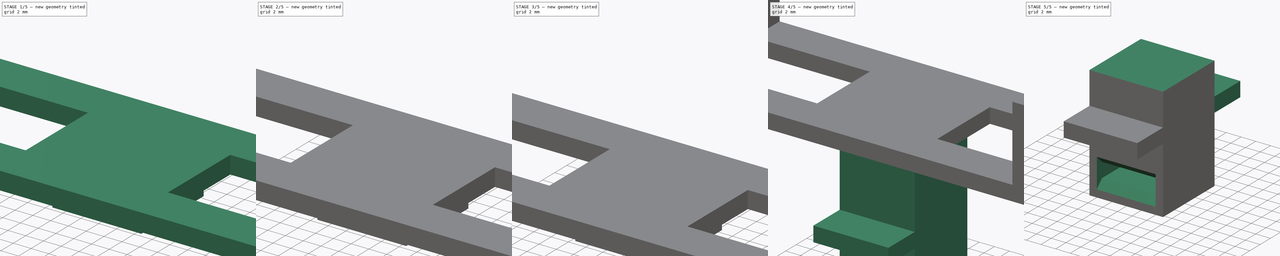
[diagram: build sequence overview — one tinted view per stage of 5, left to right]
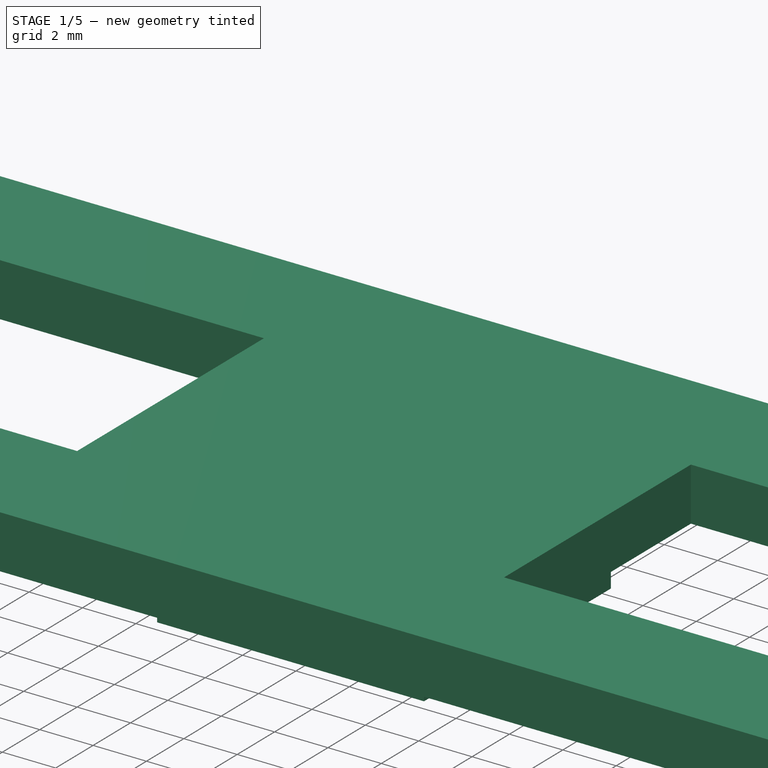
[diagram: stage 1 of 5 — iso view after this stage's code; geometry added in this stage tinted green]
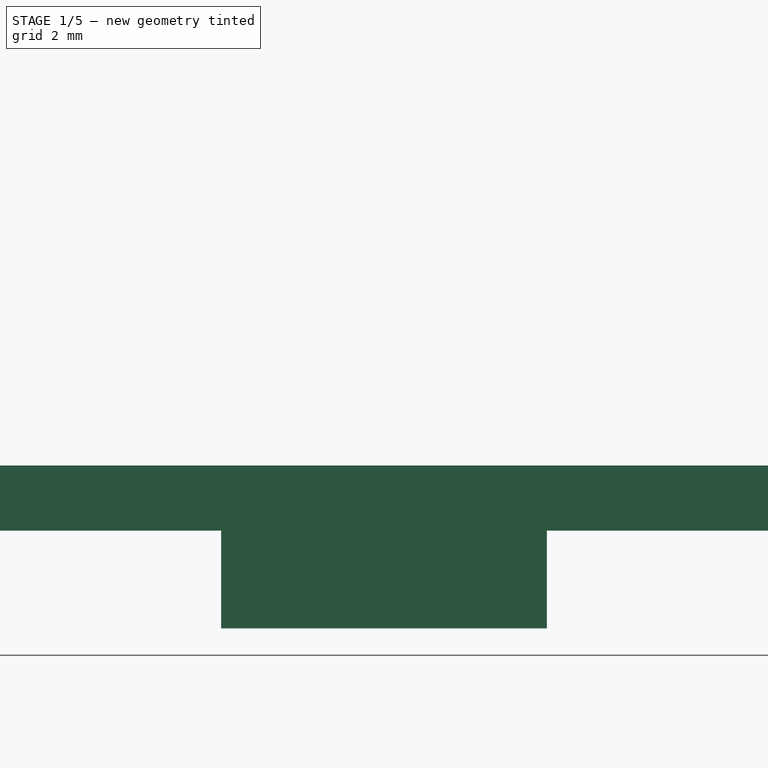
[diagram: stage 1 of 5 — front view after this stage's code; geometry added in this stage tinted green]
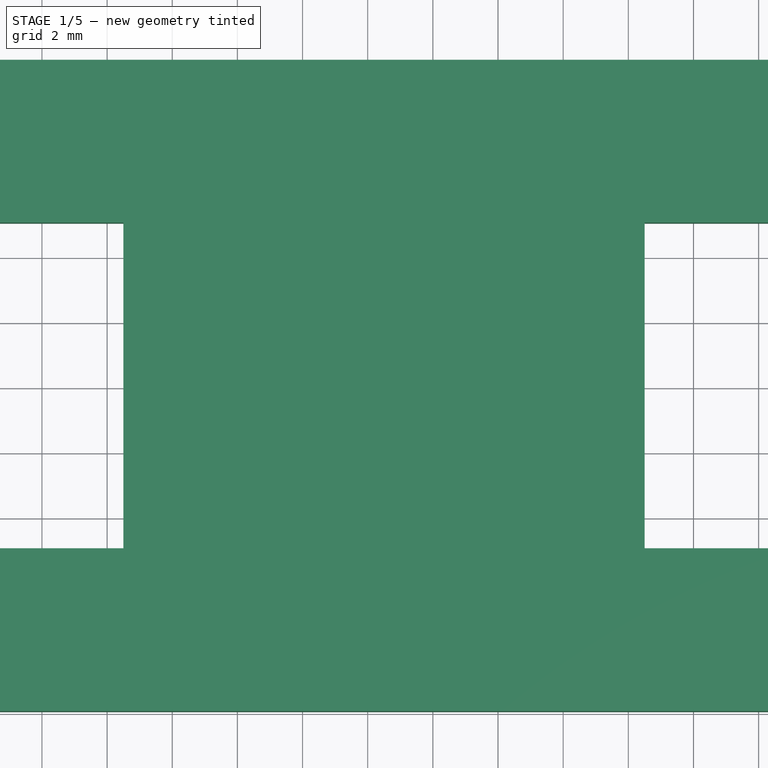
[diagram: stage 1 of 5 — top view after this stage's code; geometry added in this stage tinted green]
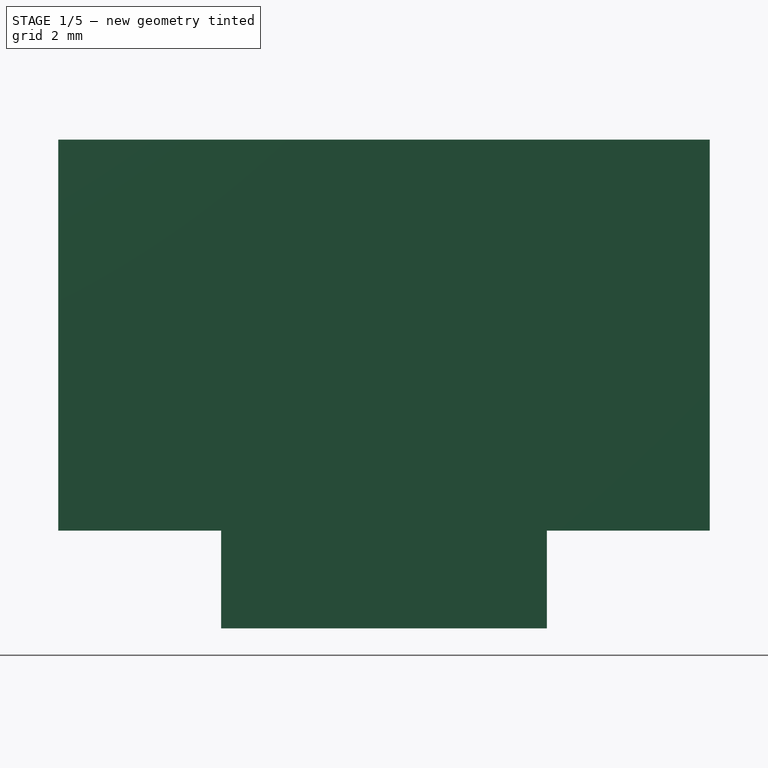
[diagram: stage 1 of 5 — right view after this stage's code; geometry added in this stage tinted green]
FCSTD DOCUMENT  (FreeCAD 1.0R39319 (Git))
Label: block
License: All rights reserved
LicenseURL: https://en.wikipedia.org/wiki/All_rights_reserved
objects: PartDesign::Pad×14, Sketcher::SketchObject×12, PartDesign::Pocket×5, PartDesign::Chamfer×1, PartDesign::Body×1
note: 85 computed .brp shape members not serialized (recipe doc carries the construction recipe); baked Part::Feature solids carry a one-line shape summary decoded from their .brp

FEATURE [Sketcher::SketchObject] Sketch
  ArcFitTolerance = 1e-06
  AttachmentSupport = -> [XY_Plane]
  FullyConstrained = true
  MakeInternals = false
  MapMode = 5
  sketch-geometry (4):
    g0: LineSegment StartX=0 StartY=0 StartZ=0 EndX=49 EndY=0 EndZ=0
    g1: LineSegment StartX=49 StartY=0 StartZ=0 EndX=49 EndY=20 EndZ=0
    g2: LineSegment StartX=49 StartY=20 StartZ=0 EndX=0 EndY=20 EndZ=0
    g3: LineSegment StartX=0 StartY=20 StartZ=0 EndX=0 EndY=0 EndZ=0
  constraints (11):
    c: Coincident(g0,g1)
    c: Coincident(g1,g2)
    c: Coincident(g2,g3)
    c: Coincident(g3,g0)
    c: Horizontal(g0)
    c: Horizontal(g2)
    c: Vertical(g1)
    c: Vertical(g3)
    c: Distance(g1,g3) = 49
    c: Distance(g0,g2) = 20
    c: Coincident(g0,g-1)
FEATURE [PartDesign::Pad] Pad
  Direction = (0,0,1)
  Length = 2
  Length2 = 10
  Profile = -> Sketch
  ReferenceAxis = -> Sketch [N_Axis]
  Refine = true
  Suppressed = false
  Type = 0
FEATURE [Sketcher::SketchObject] Sketch001
  ArcFitTolerance = 1e-06
  AttachmentSupport = -> [Pad]
  ExternalGeometry = -> [Pad]
  FullyConstrained = true
  MakeInternals = false
  MapMode = 5
  Placement = pos=(0,0,2) rot=(0,0,1;0rad)
  sketch-geometry (10):
    g0: LineSegment StartX=19.5 StartY=15 StartZ=0 EndX=19.5 EndY=5 EndZ=0
    g1: LineSegment StartX=19.5 StartY=5 StartZ=0 EndX=29.5 EndY=5 EndZ=0
    g2: LineSegment StartX=29.5 StartY=5 StartZ=0 EndX=29.5 EndY=15 EndZ=0
    g3: LineSegment StartX=29.5 StartY=15 StartZ=0 EndX=19.5 EndY=15 EndZ=0
    g4: GeomPoint X=49 Y=10 Z=0
    g5: GeomPoint X=29.5 Y=10 Z=0
    g6: LineSegment [constr] StartX=49 StartY=10 StartZ=0 EndX=0 EndY=10 EndZ=0
    g7: GeomPoint [constr] X=24.5 Y=20 Z=0
    g8: LineSegment [constr] StartX=24.5 StartY=20 StartZ=0 EndX=24.5 EndY=0 EndZ=0
    g9: GeomPoint [constr] X=24.5 Y=15 Z=0
  constraints (22):
    c: Coincident(g0,g1)
    c: Coincident(g1,g2)
    c: Coincident(g2,g3)
    c: Coincident(g3,g0)
    c: Vertical(g0)
    c: Vertical(g2)
    c: Horizontal(g1)
    c: Horizontal(g3)
    c: Distance(g0,g2) = 10
    c: Distance(g1,g3) = 10
    c: Symmetric(g-4,g-4,g4)
    c: Symmetric(g2,g2,g5)
    c: Coincident(g6,g4)
    c: PointOnObject(g6,g-2)
    c: Horizontal(g6)
    c: PointOnObject(g5,g6)
    c: Symmetric(g-3,g-3,g7)
    c: Coincident(g8,g7)
    c: PointOnObject(g8,g-1)
    c: Vertical(g8)
    c: Symmetric(g3,g3,g9)
    c: PointOnObject(g9,g8)
FEATURE [PartDesign::Pad] Pad001
  BaseFeature = -> Pad
  Direction = (0,0,1)
  Length = 5
  Length2 = 10
  Profile = -> Sketch001
  ReferenceAxis = -> Sketch001 [N_Axis]
  Refine = true
  Reversed = true
  Suppressed = false
  Type = 0
FEATURE [Sketcher::SketchObject] Sketch002
  ArcFitTolerance = 1e-06
  AttachmentSupport = -> [Pad001]
  ExternalGeometry = -> [Pad001]
  FullyConstrained = true
  MakeInternals = false
  MapMode = 5
  Placement = pos=(0,0,0) rot=(1,0,0;3.14159rad)
  sketch-geometry (8):
    g0: LineSegment StartX=32.5 StartY=-5 StartZ=0 EndX=32.5 EndY=-15 EndZ=0
    g1: LineSegment StartX=32.5 StartY=-15 StartZ=0 EndX=46 EndY=-15 EndZ=0
    g2: LineSegment StartX=46 StartY=-15 StartZ=0 EndX=46 EndY=-5 EndZ=0
    g3: LineSegment StartX=46 StartY=-5 StartZ=0 EndX=32.5 EndY=-5 EndZ=0
    g4: LineSegment StartX=16.5 StartY=-5 StartZ=0 EndX=3 EndY=-5 EndZ=0
    g5: LineSegment StartX=3 StartY=-5 StartZ=0 EndX=3 EndY=-15 EndZ=0
    g6: LineSegment StartX=3 StartY=-15 StartZ=0 EndX=16.5 EndY=-15 EndZ=0
    g7: LineSegment StartX=16.5 StartY=-15 StartZ=0 EndX=16.5 EndY=-5 EndZ=0
  constraints (24):
    c: Coincident(g0,g1)
    c: Coincident(g1,g2)
    c: Coincident(g2,g3)
    c: Coincident(g3,g0)
    c: Vertical(g0)
    c: Vertical(g2)
    c: Horizontal(g1)
    c: Horizontal(g3)
    c: Coincident(g4,g5)
    c: Coincident(g5,g6)
    c: Coincident(g6,g7)
    c: Coincident(g7,g4)
    c: Horizontal(g4)
    c: Horizontal(g6)
    c: Vertical(g5)
    c: Vertical(g7)
    c: Distance(g4,g-1) = 5
    c: Distance(g0,g-1) = 5
    c: Distance(g6,g-4) = 5
    c: Distance(g0,g-4) = 5
    c: Distance(g5,g-2) = 3
    c: Distance(g1,g-3) = 3
    c: Distance(g6,g-6) = 3
    c: Distance(g0,g-5) = 3
FEATURE [PartDesign::Pocket] Pocket
  BaseFeature = -> Pad001
  Direction = (0,0,1)
  Length = 5
  Length2 = 5
  Profile = -> Sketch002
  ReferenceAxis = -> Sketch002 [N_Axis]
  Refine = true
  Suppressed = false
  Type = 0
FEATURE [Sketcher::SketchObject] Sketch003
  ArcFitTolerance = 1e-06
  AttachmentSupport = -> [Pocket]
  ExternalGeometry = -> [Pocket]
  FullyConstrained = true
  MakeInternals = false
  MapMode = 5
  Placement = pos=(0,0,2) rot=(0,0,1;0rad)
  sketch-geometry (4):
    g0: LineSegment StartX=49 StartY=20 StartZ=0 EndX=46 EndY=20 EndZ=0
    g1: LineSegment StartX=46 StartY=20 StartZ=0 EndX=46 EndY=0 EndZ=0
    g2: LineSegment StartX=46 StartY=0 StartZ=0 EndX=49 EndY=0 EndZ=0
    g3: LineSegment StartX=49 StartY=0 StartZ=0 EndX=49 EndY=20 EndZ=0
  constraints (11):
    c: Coincident(g0,g1)
    c: Coincident(g1,g2)
    c: Coincident(g2,g3)
    c: Coincident(g3,g0)
    c: Horizontal(g0)
    c: Horizontal(g2)
    c: Vertical(g1)
    c: Vertical(g3)
    c: Distance(g1,g3) = 3
    c: Coincident(g0,g-4)
    c: PointOnObject(g1,g-1)
FEATURE [PartDesign::Pad] Pad002
  BaseFeature = -> Pocket
  Direction = (0,0,1)
  Length = 10
  Length2 = 10
  Profile = -> Sketch003
  ReferenceAxis = -> Sketch003 [N_Axis]
  Refine = true
  Suppressed = false
  Type = 0
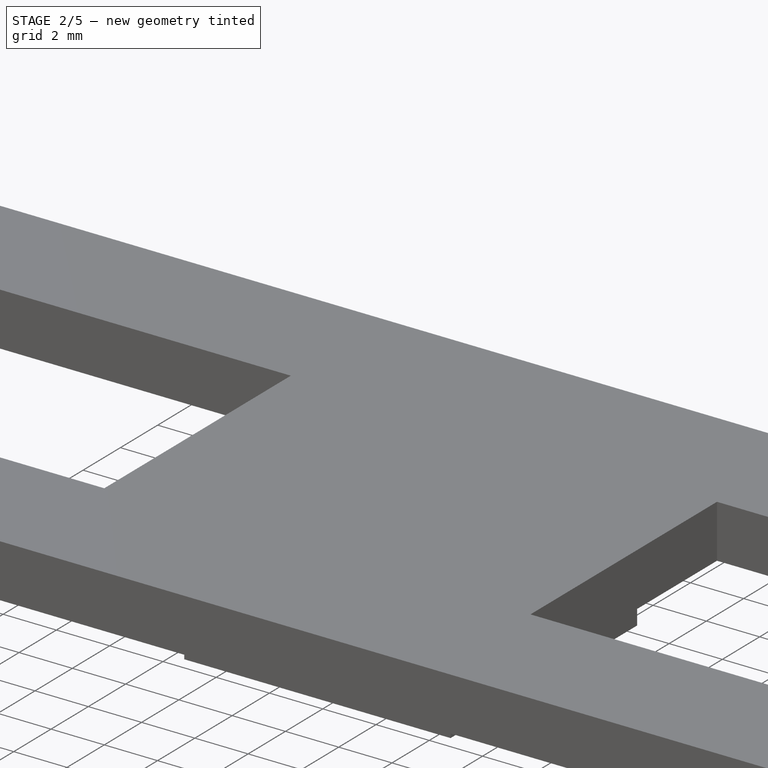
[diagram: stage 2 of 5 — iso view after this stage's code; geometry added in this stage tinted green]
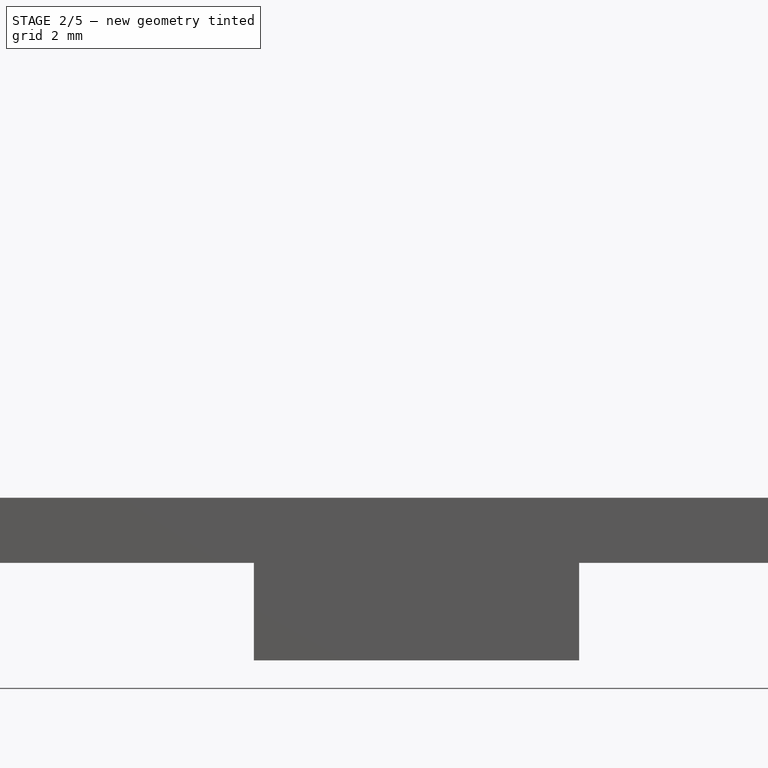
[diagram: stage 2 of 5 — front view after this stage's code; geometry added in this stage tinted green]
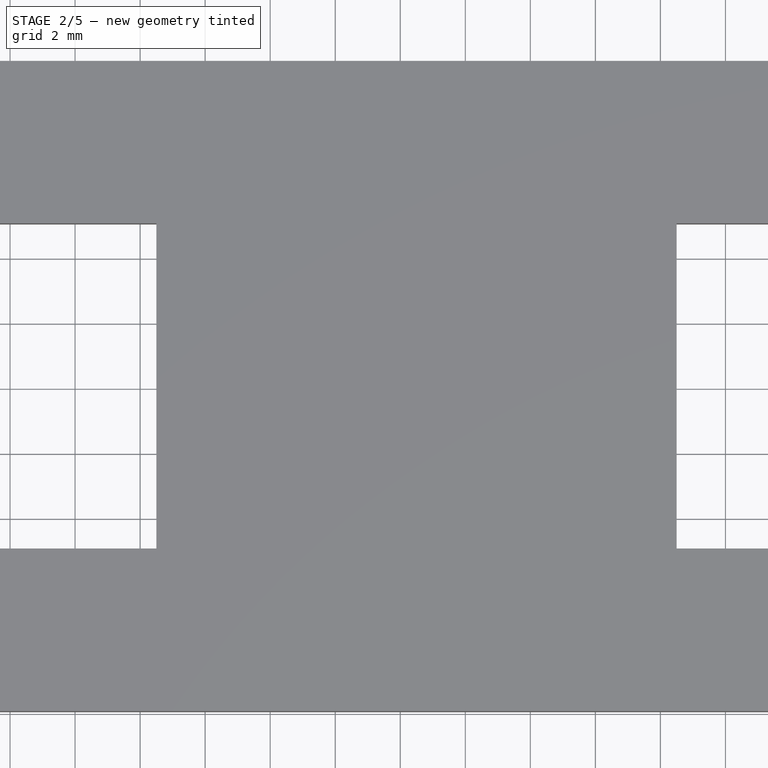
[diagram: stage 2 of 5 — top view after this stage's code; geometry added in this stage tinted green]
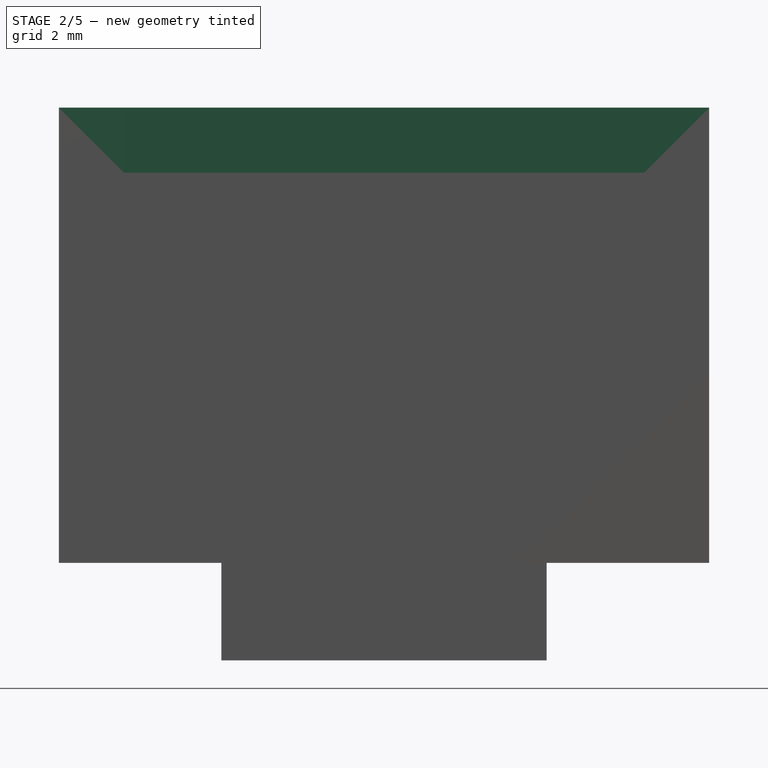
[diagram: stage 2 of 5 — right view after this stage's code; geometry added in this stage tinted green]
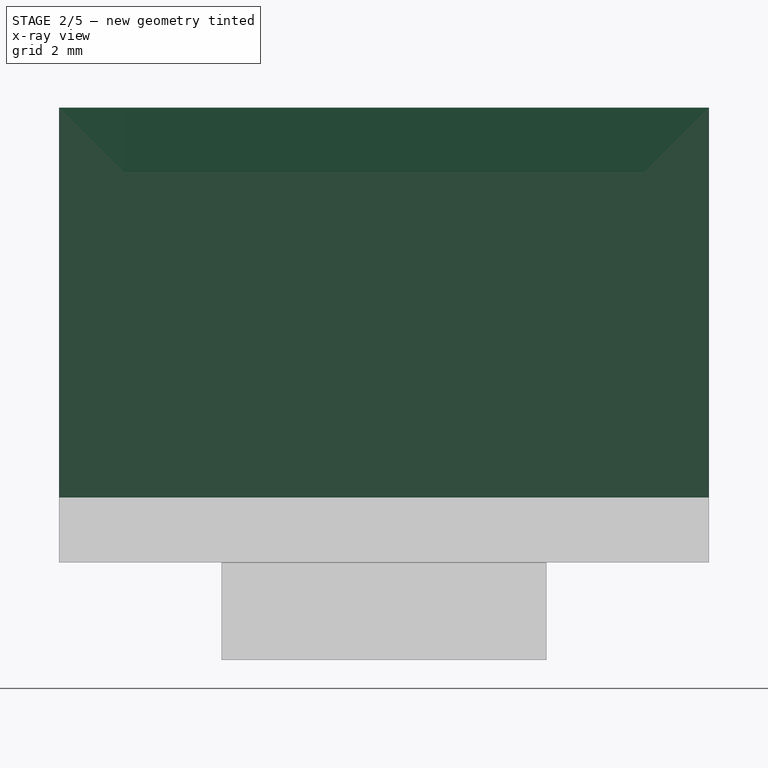
[diagram: stage 2 of 5 — x-ray composite at the right view; earlier geometry ghosted, this stage's added geometry solid]
FEATURE [Sketcher::SketchObject] Sketch004
  ArcFitTolerance = 1e-06
  AttachmentSupport = -> [Pad002]
  ExternalGeometry = -> [Pad002]
  FullyConstrained = true
  MakeInternals = false
  MapMode = 5
  Placement = pos=(0,0,12) rot=(0,0,1;0rad)
  sketch-geometry (8):
    g0: LineSegment StartX=49 StartY=20 StartZ=0 EndX=48 EndY=20 EndZ=0
    g1: LineSegment StartX=48 StartY=20 StartZ=0 EndX=48 EndY=18 EndZ=0
    g2: LineSegment StartX=48 StartY=18 StartZ=0 EndX=49 EndY=18 EndZ=0
    g3: LineSegment StartX=49 StartY=18 StartZ=0 EndX=49 EndY=20 EndZ=0
    g4: LineSegment StartX=49 StartY=0 StartZ=0 EndX=49 EndY=2 EndZ=0
    g5: LineSegment StartX=49 StartY=2 StartZ=0 EndX=48 EndY=2 EndZ=0
    g6: LineSegment StartX=48 StartY=2 StartZ=0 EndX=48 EndY=0 EndZ=0
    g7: LineSegment StartX=48 StartY=0 StartZ=0 EndX=49 EndY=0 EndZ=0
  constraints (22):
    c: Coincident(g0,g1)
    c: Coincident(g1,g2)
    c: Coincident(g2,g3)
    c: Coincident(g3,g0)
    c: Horizontal(g0)
    c: Horizontal(g2)
    c: Vertical(g1)
    c: Vertical(g3)
    c: Distance(g1,g3) = 1
    c: Distance(g0,g2) = 2
    c: Coincident(g0,g-4)
    c: Coincident(g4,g5)
    c: Coincident(g5,g6)
    c: Coincident(g6,g7)
    c: Coincident(g7,g4)
    c: Vertical(g4)
    c: Vertical(g6)
    c: Horizontal(g5)
    c: Horizontal(g7)
    c: Distance(g4,g6) = 1
    c: Distance(g5,g7) = 2
    c: Coincident(g4,g-4)
FEATURE [PartDesign::Pad] Pad003
  BaseFeature = -> Pad002
  Direction = (0,0,1)
  Length = 2
  Length2 = 10
  Profile = -> Sketch004
  ReferenceAxis = -> Sketch004 [N_Axis]
  Refine = true
  Suppressed = false
  Type = 0
FEATURE [PartDesign::Pad] Pad004
  BaseFeature = -> Pad003
  Direction = (-1,0,0)
  Length = 2
  Length2 = 10
  Profile = -> Pad003 [Face1]
  Refine = true
  Suppressed = false
  Type = 0
FEATURE [Sketcher::SketchObject] Sketch005
  ArcFitTolerance = 1e-06
  AttachmentSupport = -> [Pad004]
  ExternalGeometry = -> [Pad004]
  FullyConstrained = true
  MakeInternals = false
  MapMode = 5
  Placement = pos=(0,0,2) rot=(0,0,1;0rad)
  sketch-geometry (4):
    g0: LineSegment StartX=-2 StartY=20 StartZ=0 EndX=-2 EndY=0 EndZ=0
    g1: LineSegment StartX=-2 StartY=0 StartZ=0 EndX=1 EndY=0 EndZ=0
    g2: LineSegment StartX=1 StartY=0 StartZ=0 EndX=1 EndY=20 EndZ=0
    g3: LineSegment StartX=1 StartY=20 StartZ=0 EndX=-2 EndY=20 EndZ=0
  constraints (11):
    c: Coincident(g0,g1)
    c: Coincident(g1,g2)
    c: Coincident(g2,g3)
    c: Coincident(g3,g0)
    c: Vertical(g0)
    c: Vertical(g2)
    c: Horizontal(g1)
    c: Horizontal(g3)
    c: Distance(g0,g2) = 3
    c: Coincident(g0,g-4)
    c: PointOnObject(g1,g-1)
FEATURE [PartDesign::Pad] Pad005
  BaseFeature = -> Pad004
  Direction = (0,0,1)
  Length = 10
  Length2 = 10
  Profile = -> Sketch005
  ReferenceAxis = -> Sketch005 [N_Axis]
  Refine = true
  Suppressed = false
  Type = 0
FEATURE [Sketcher::SketchObject] Sketch006
  ArcFitTolerance = 1e-06
  AttachmentSupport = -> [Pad005]
  ExternalGeometry = -> [Pad005]
  FullyConstrained = true
  MakeInternals = false
  MapMode = 5
  Placement = pos=(0,0,12) rot=(0,0,1;0rad)
  sketch-geometry (4):
    g0: LineSegment StartX=-2 StartY=20 StartZ=0 EndX=-2 EndY=0 EndZ=0
    g1: LineSegment StartX=-2 StartY=0 StartZ=0 EndX=-1 EndY=0 EndZ=0
    g2: LineSegment StartX=-1 StartY=0 StartZ=0 EndX=-1 EndY=20 EndZ=0
    g3: LineSegment StartX=-1 StartY=20 StartZ=0 EndX=-2 EndY=20 EndZ=0
  constraints (11):
    c: Coincident(g0,g1)
    c: Coincident(g1,g2)
    c: Coincident(g2,g3)
    c: Coincident(g3,g0)
    c: Vertical(g0)
    c: Vertical(g2)
    c: Horizontal(g1)
    c: Horizontal(g3)
    c: Distance(g0,g2) = 1
    c: Coincident(g0,g-4)
    c: PointOnObject(g1,g-1)
FEATURE [PartDesign::Pad] Pad006
  BaseFeature = -> Pad005
  Direction = (0,0,1)
  Length = 2
  Length2 = 10
  Profile = -> Sketch006
  ReferenceAxis = -> Sketch006 [N_Axis]
  Refine = true
  Suppressed = false
  Type = 0
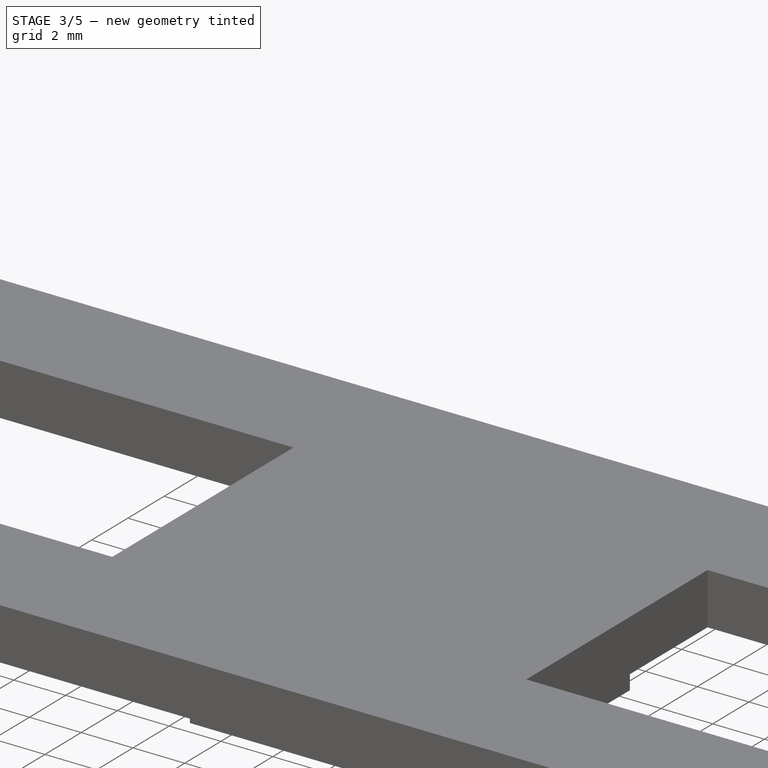
[diagram: stage 3 of 5 — iso view after this stage's code; geometry added in this stage tinted green]
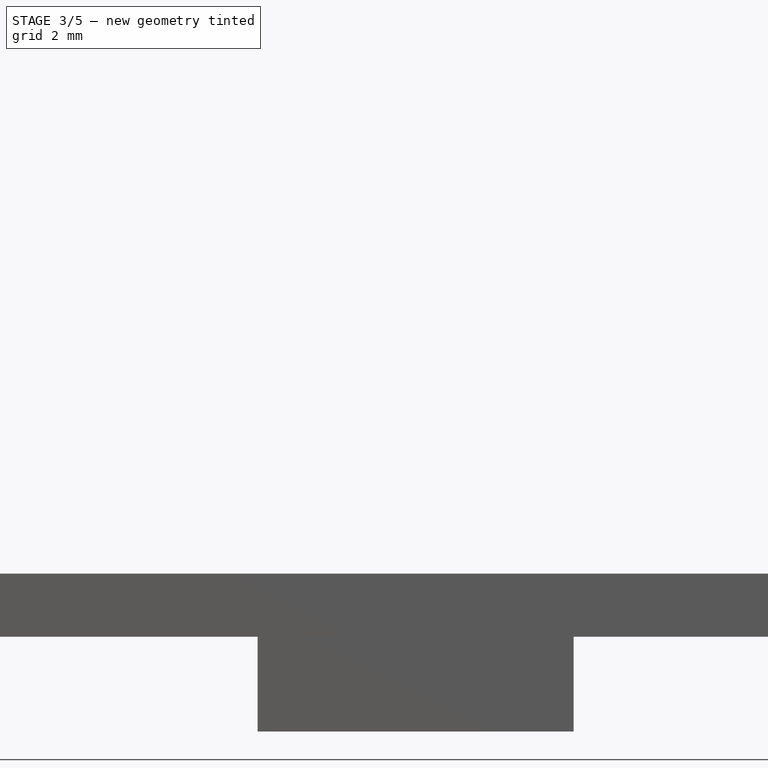
[diagram: stage 3 of 5 — front view after this stage's code; geometry added in this stage tinted green]
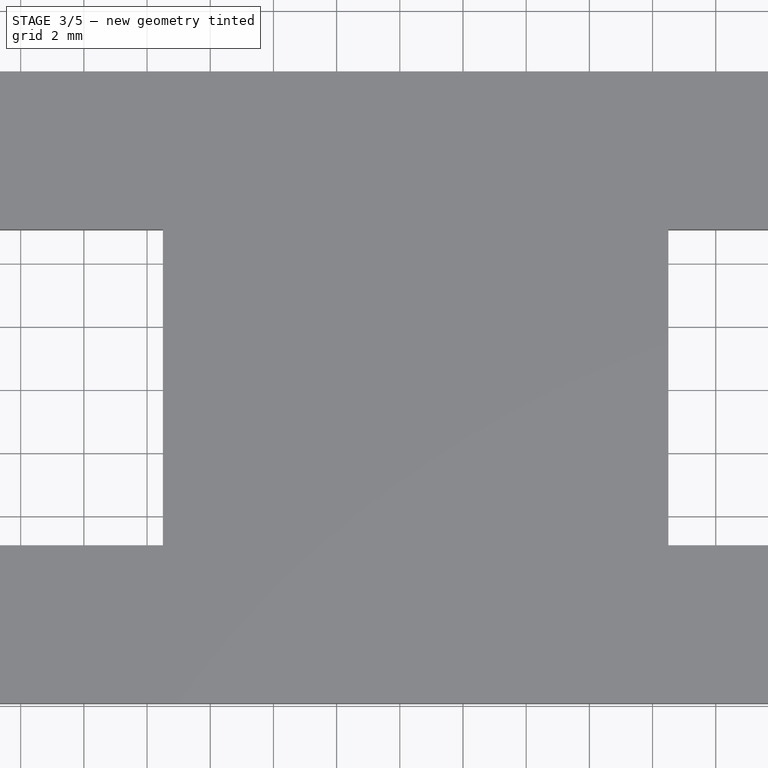
[diagram: stage 3 of 5 — top view after this stage's code; geometry added in this stage tinted green]
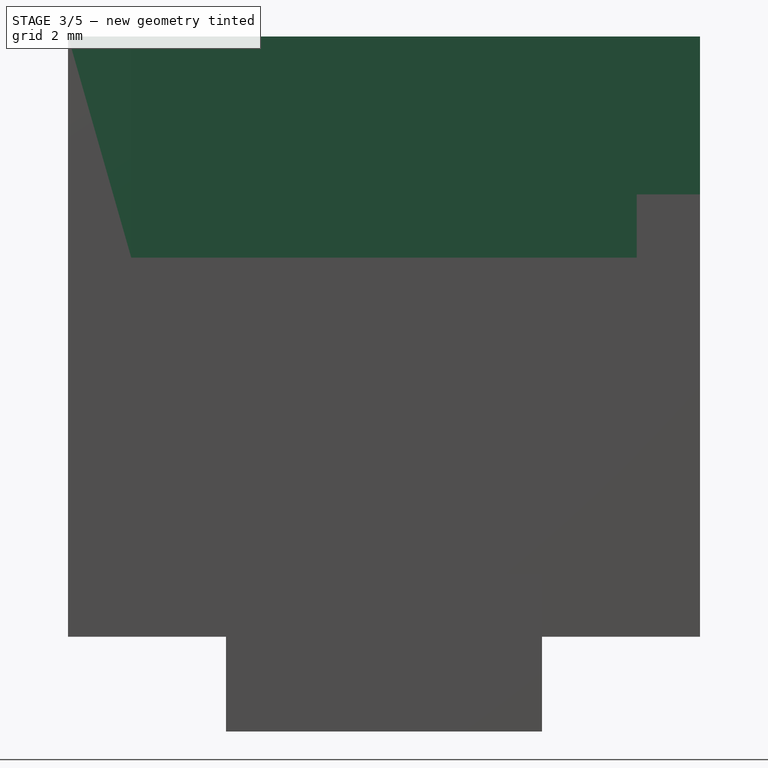
[diagram: stage 3 of 5 — right view after this stage's code; geometry added in this stage tinted green]
FEATURE [PartDesign::Pocket] Pocket001
  BaseFeature = -> Pad006
  Direction = (-1,0,0)
  Length = 5
  Length2 = 5
  Profile = -> Pad006 [Face9]
  Refine = true
  Suppressed = false
  Type = 0
FEATURE [Sketcher::SketchObject] Sketch007
  ArcFitTolerance = 1e-06
  AttachmentSupport = -> [Pocket001]
  ExternalGeometry = -> [Pocket001]
  FullyConstrained = true
  MakeInternals = false
  MapMode = 5
  Placement = pos=(46,0,0) rot=(0.57735,-0.57735,-0.57735;2.0944rad)
  sketch-geometry (4):
    g0: LineSegment StartX=-15 StartY=0 StartZ=0 EndX=-5 EndY=0 EndZ=0
    g1: LineSegment StartX=-5 StartY=0 StartZ=0 EndX=-5 EndY=2 EndZ=0
    g2: LineSegment StartX=-5 StartY=2 StartZ=0 EndX=-15 EndY=2 EndZ=0
    g3: LineSegment StartX=-15 StartY=2 StartZ=0 EndX=-15 EndY=0 EndZ=0
  constraints (11):
    c: Coincident(g0,g1)
    c: Coincident(g1,g2)
    c: Coincident(g2,g3)
    c: Coincident(g3,g0)
    c: Horizontal(g0)
    c: Horizontal(g2)
    c: Vertical(g1)
    c: Vertical(g3)
    c: PointOnObject(g0,g-1)
    c: Coincident(g1,g-4)
    c: DistanceX(g2,g2) = 10
FEATURE [PartDesign::Pocket] Pocket002
  BaseFeature = -> Pocket001
  Direction = (1,0,0)
  Length = 5
  Length2 = 5
  Profile = -> Sketch007
  ReferenceAxis = -> Sketch007 [N_Axis]
  Refine = true
  Suppressed = false
  Type = 0
FEATURE [PartDesign::Pad] Pad007
  BaseFeature = -> Pocket002
  Direction = (0,0,1)
  Length = 5
  Length2 = 10
  Profile = -> Pocket002 [Face22]
  Refine = true
  Suppressed = false
  Type = 0
FEATURE [PartDesign::Pad] Pad008
  BaseFeature = -> Pad007
  Direction = (0,0,1)
  Length = 5
  Length2 = 10
  Profile = -> Pad007 [Face13]
  Refine = true
  Suppressed = false
  Type = 0
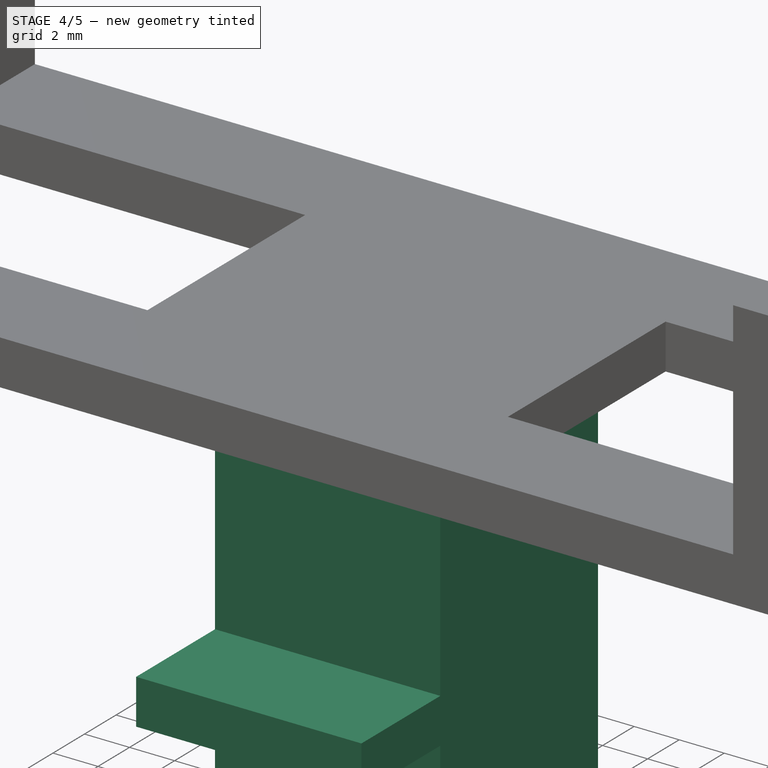
[diagram: stage 4 of 5 — iso view after this stage's code; geometry added in this stage tinted green]
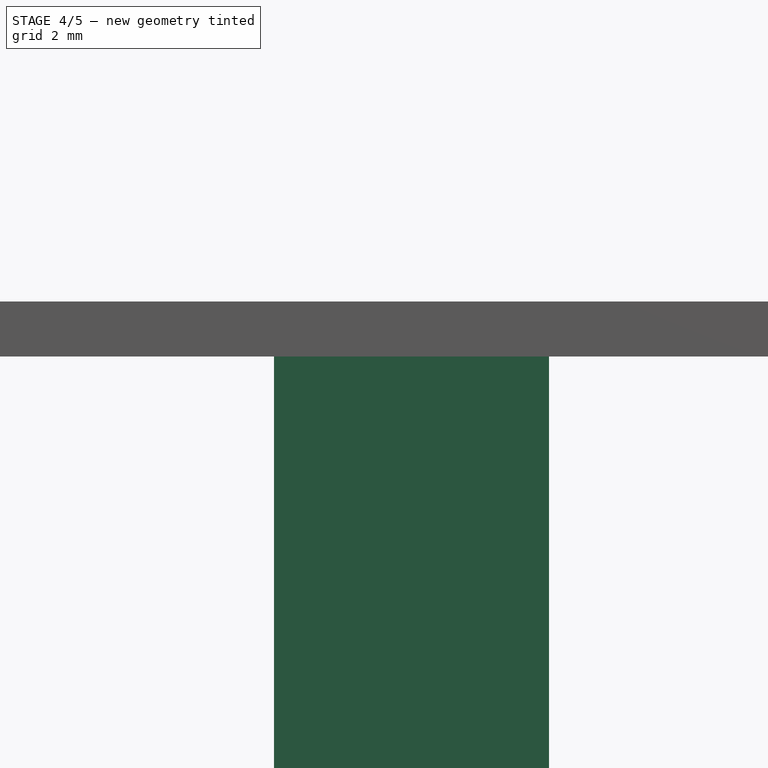
[diagram: stage 4 of 5 — front view after this stage's code; geometry added in this stage tinted green]
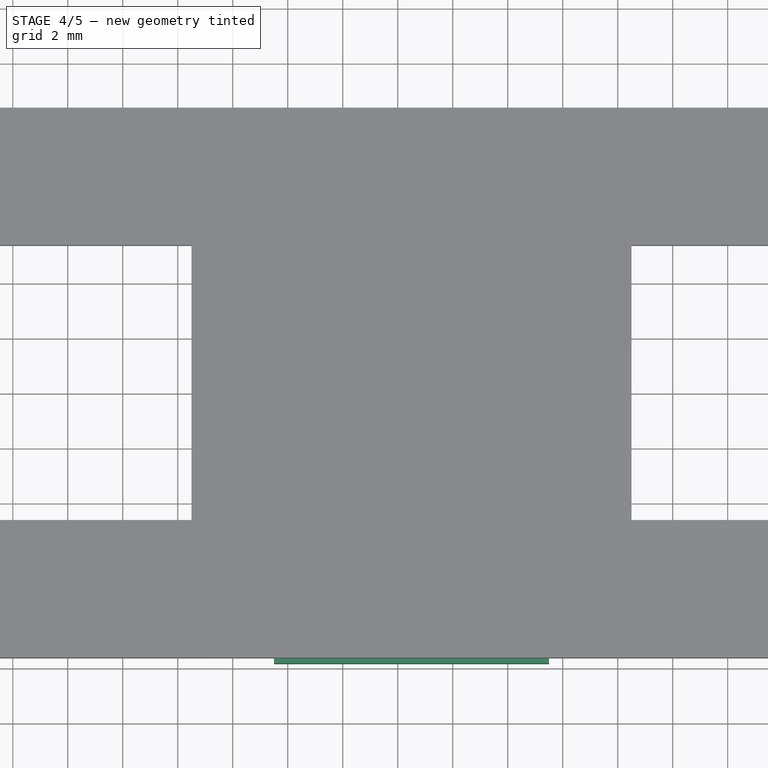
[diagram: stage 4 of 5 — top view after this stage's code; geometry added in this stage tinted green]
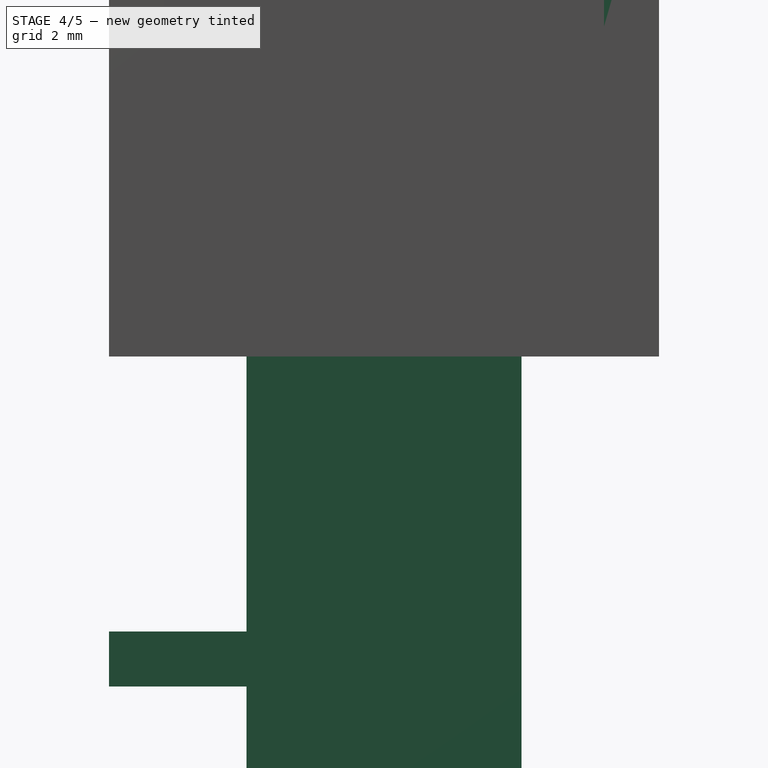
[diagram: stage 4 of 5 — right view after this stage's code; geometry added in this stage tinted green]
FEATURE [PartDesign::Pad] Pad009
  BaseFeature = -> Pad008
  Direction = (0,0,1)
  Length = 5
  Length2 = 10
  Profile = -> Pad008 [Face22]
  Refine = true
  Suppressed = false
  Type = 0
FEATURE [Sketcher::SketchObject] Sketch008
  ArcFitTolerance = 1e-06
  AttachmentSupport = -> [Pad009]
  FullyConstrained = true
  MakeInternals = false
  MapMode = 5
  Placement = pos=(0,0,-3) rot=(1,0,0;3.14159rad)
FEATURE [PartDesign::Pad] Pad010
  BaseFeature = -> Pad009
  Direction = (0,0,-1)
  Length = 15
  Length2 = 10
  Profile = -> Pad009 [Face26]
  Refine = true
  Suppressed = false
  Type = 0
FEATURE [Sketcher::SketchObject] Sketch009
  ArcFitTolerance = 1e-06
  AttachmentSupport = -> [Pad010]
  ExternalGeometry = -> [Pad010]
  FullyConstrained = true
  MakeInternals = false
  MapMode = 5
  Placement = pos=(0,5,0) rot=(1,0,0;1.5708rad)
  sketch-geometry (4):
    g0: LineSegment StartX=19.5 StartY=-10 StartZ=0 EndX=29.5 EndY=-10 EndZ=0
    g1: LineSegment StartX=29.5 StartY=-10 StartZ=0 EndX=29.5 EndY=-12 EndZ=0
    g2: LineSegment StartX=29.5 StartY=-12 StartZ=0 EndX=19.5 EndY=-12 EndZ=0
    g3: LineSegment StartX=19.5 StartY=-12 StartZ=0 EndX=19.5 EndY=-10 EndZ=0
  constraints (12):
    c: Coincident(g0,g1)
    c: Coincident(g1,g2)
    c: Coincident(g2,g3)
    c: Coincident(g3,g0)
    c: Horizontal(g0)
    c: Horizontal(g2)
    c: Vertical(g1)
    c: Vertical(g3)
    c: DistanceY(g0,g-4) = 10
    c: Distance(g1,g1) = 2
    c: PointOnObject(g2,g-4)
    c: PointOnObject(g1,g-3)
FEATURE [PartDesign::Pad] Pad011
  BaseFeature = -> Pad010
  Direction = (0,-1,2e-16)
  Length = 5
  Length2 = 10
  Profile = -> Sketch009
  ReferenceAxis = -> Sketch009 [N_Axis]
  Refine = true
  Suppressed = false
  Type = 0
FEATURE [PartDesign::Pad] Pad012
  BaseFeature = -> Pad011
  Direction = (0,0,-1)
  Length = 3
  Length2 = 10
  Profile = -> Pad011 [Face29]
  Refine = true
  Suppressed = false
  Type = 0
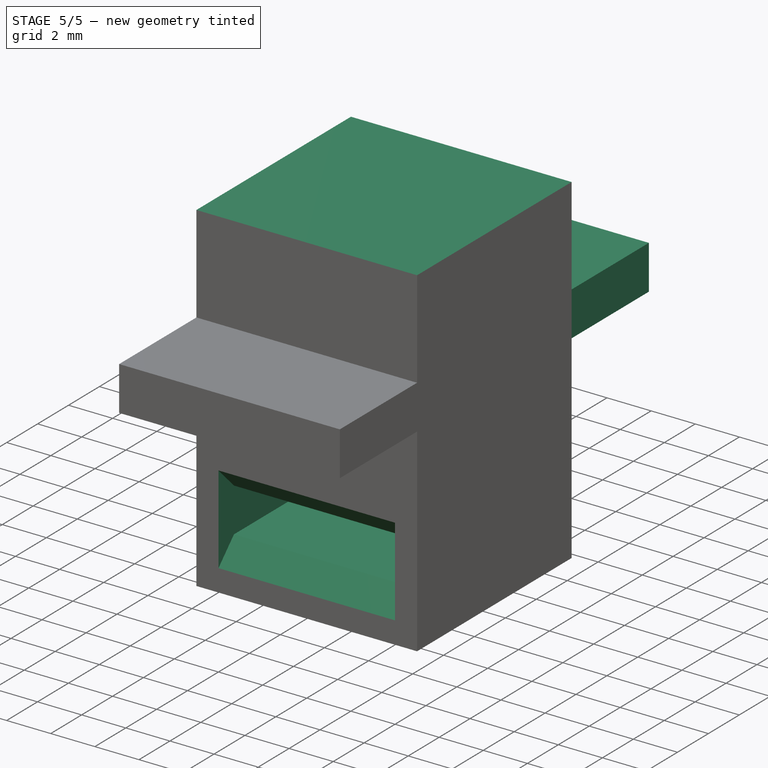
[diagram: stage 5 of 5 — iso view after this stage's code; geometry added in this stage tinted green]
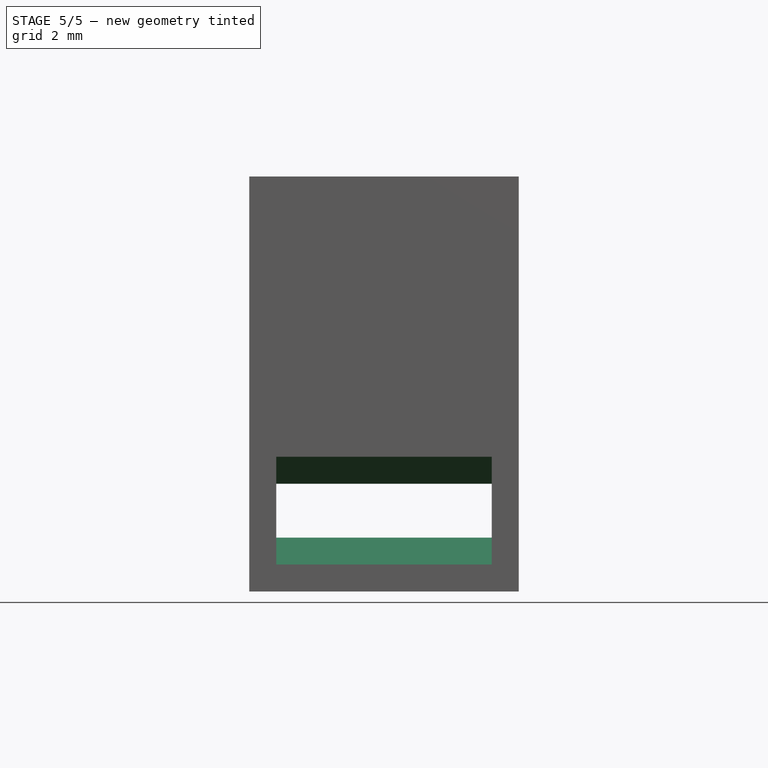
[diagram: stage 5 of 5 — front view after this stage's code; geometry added in this stage tinted green]
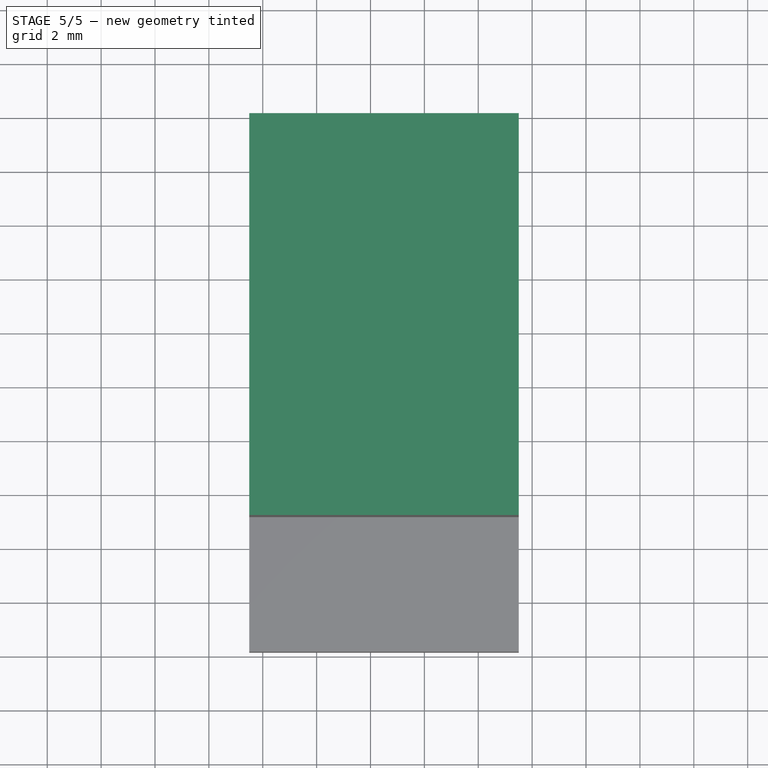
[diagram: stage 5 of 5 — top view after this stage's code; geometry added in this stage tinted green]
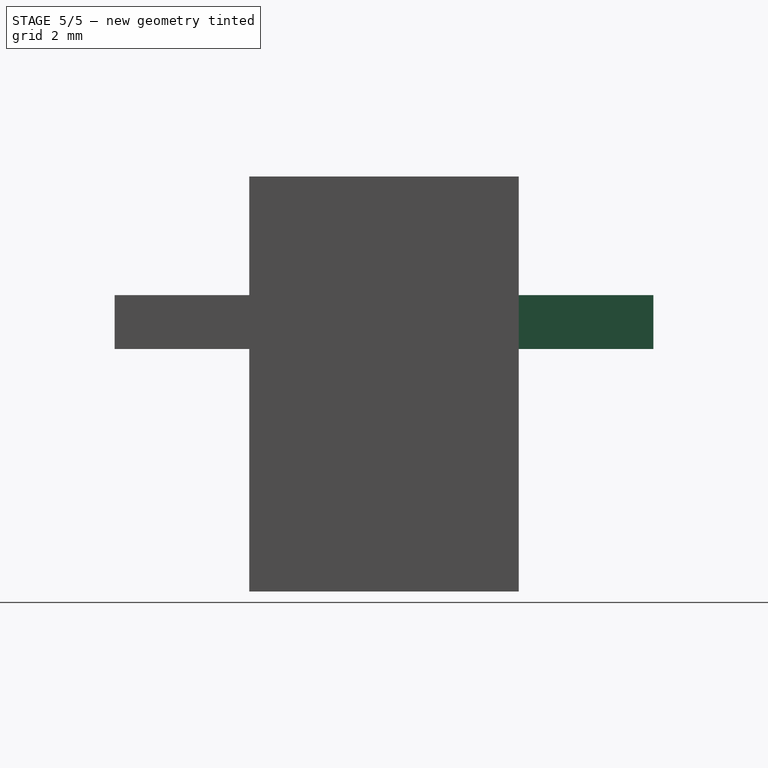
[diagram: stage 5 of 5 — right view after this stage's code; geometry added in this stage tinted green]
FEATURE [Sketcher::SketchObject] Sketch010
  ArcFitTolerance = 1e-06
  AttachmentSupport = -> [Pad012]
  ExternalGeometry = -> [Pad012]
  FullyConstrained = true
  MakeInternals = false
  MapMode = 5
  Placement = pos=(0,5,0) rot=(1,0,0;1.5708rad)
  sketch-geometry (5):
    g0: LineSegment StartX=20.5 StartY=-17 StartZ=0 EndX=20.5 EndY=-19 EndZ=0
    g1: LineSegment StartX=20.5 StartY=-19 StartZ=0 EndX=28.5 EndY=-19 EndZ=0
    g2: LineSegment StartX=28.5 StartY=-19 StartZ=0 EndX=28.5 EndY=-17 EndZ=0
    g3: LineSegment StartX=28.5 StartY=-17 StartZ=0 EndX=20.5 EndY=-17 EndZ=0
    g4: GeomPoint X=24.5 Y=-19 Z=0
  constraints (13):
    c: Coincident(g0,g1)
    c: Coincident(g1,g2)
    c: Coincident(g2,g3)
    c: Coincident(g3,g0)
    c: Vertical(g0)
    c: Vertical(g2)
    c: Horizontal(g1)
    c: Horizontal(g3)
    c: Distance(g0,g2) = 8
    c: Distance(g1,g3) = 2
    c: DistanceY(g0,g-4) = 5
    c: Symmetric(g1,g1,g4)
    c: Distance(g1,g-3) = 1
FEATURE [PartDesign::Pocket] Pocket003
  BaseFeature = -> Pad012
  Direction = (0,1,-2e-16)
  Length = 5
  Length2 = 5
  Profile = -> Sketch010
  ReferenceAxis = -> Sketch010 [N_Axis]
  Refine = true
  Suppressed = false
  Type = 1
FEATURE [PartDesign::Chamfer] Chamfer
  Angle = 45
  Base = -> Pocket003 [Edge110,Edge108,Edge75,Edge77]
  BaseFeature = -> Pocket003
  ChamferType = 0
  FlipDirection = false
  Refine = true
  Size = 1
  Size2 = 1
  SupportTransform = false
  Suppressed = false
  UseAllEdges = false
FEATURE [PartDesign::Pad] Pad013
  BaseFeature = -> Chamfer
  Direction = (0,-1,4e-16)
  Length = 20
  Length2 = 10
  Profile = -> Chamfer [Face27]
  Refine = true
  Reversed = true
  Suppressed = false
  Type = 0
FEATURE [Sketcher::SketchObject] Sketch011
  ArcFitTolerance = 1e-06
  AttachmentSupport = -> [YZ_Plane]
  FullyConstrained = false
  MakeInternals = false
  MapMode = 5
  Placement = pos=(0,0,0) rot=(0.57735,0.57735,0.57735;2.0944rad)
  sketch-geometry (4):
    g0: LineSegment StartX=0 StartY=24.4022 StartZ=0 EndX=0 EndY=-5.59778 EndZ=0
    g1: LineSegment StartX=0 StartY=-5.59778 StartZ=0 EndX=30 EndY=-5.59778 EndZ=0
    g2: LineSegment StartX=30 StartY=-5.59778 StartZ=0 EndX=30 EndY=24.4022 EndZ=0
    g3: LineSegment StartX=30 StartY=24.4022 StartZ=0 EndX=0 EndY=24.4022 EndZ=0
  constraints (11):
    c: Coincident(g0,g1)
    c: Coincident(g1,g2)
    c: Coincident(g2,g3)
    c: Coincident(g3,g0)
    c: Vertical(g0)
    c: Vertical(g2)
    c: Horizontal(g1)
    c: Horizontal(g3)
    c: Distance(g0,g2) = 30
    c: Distance(g1,g3) = 30
    c: PointOnObject(g0,g-2)
FEATURE [PartDesign::Pocket] Pocket004
  BaseFeature = -> Pad013
  Direction = (-1,0,0)
  Length = 5
  Length2 = 5
  Profile = -> Sketch011
  ReferenceAxis = -> Sketch011 [N_Axis]
  Refine = true
  Reversed = true
  Suppressed = false
  Type = 1
FEATURE [PartDesign::Body] Body
  AllowCompound = false
  Group = -> [Sketch,Pad,Sketch001,Pad001,Sketch002,Pocket,Sketch003,Pad002,Sketch004,Pad003,Pad004,Sketch005,Pad005,Sketch006,Pad006,Pocket001,Sketch007,Pocket002,Pad007,Pad008,Pad009,Sketch008,Pad010,Sketch009,Pad011,Pad012,Sketch010,Pocket003,Chamfer,Pad013,Sketch011,Pocket004]
  Origin = -> Origin
  Tip = -> Pocket004
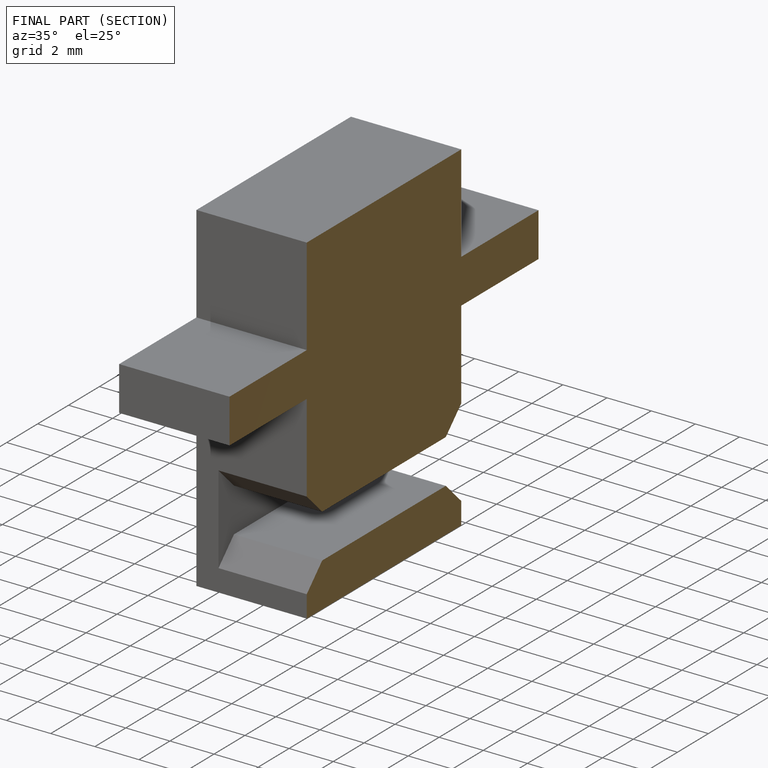
[diagram: finished part — half-section view (interior)]
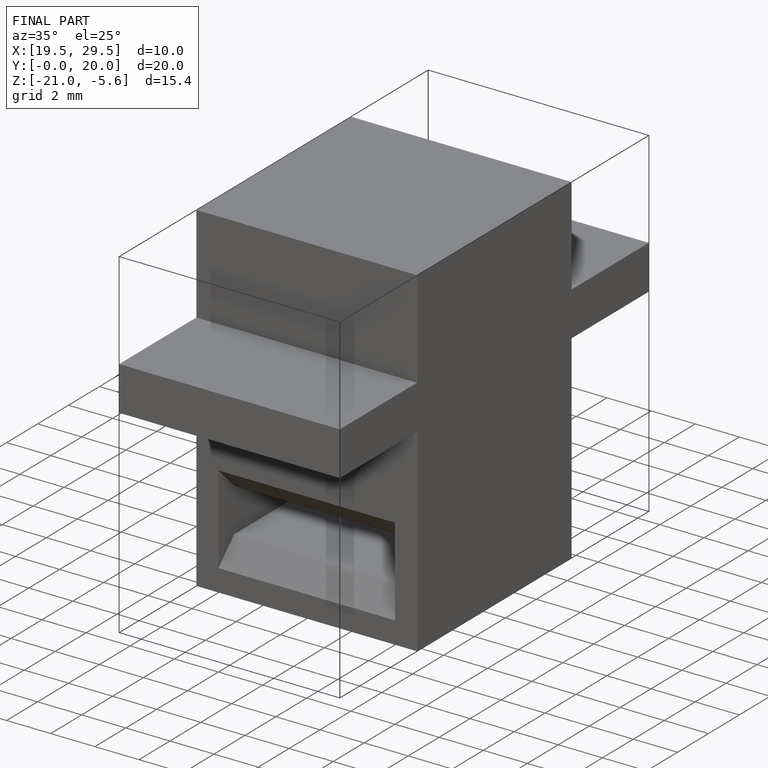
[diagram: finished part — iso view with bounding-box wireframe]
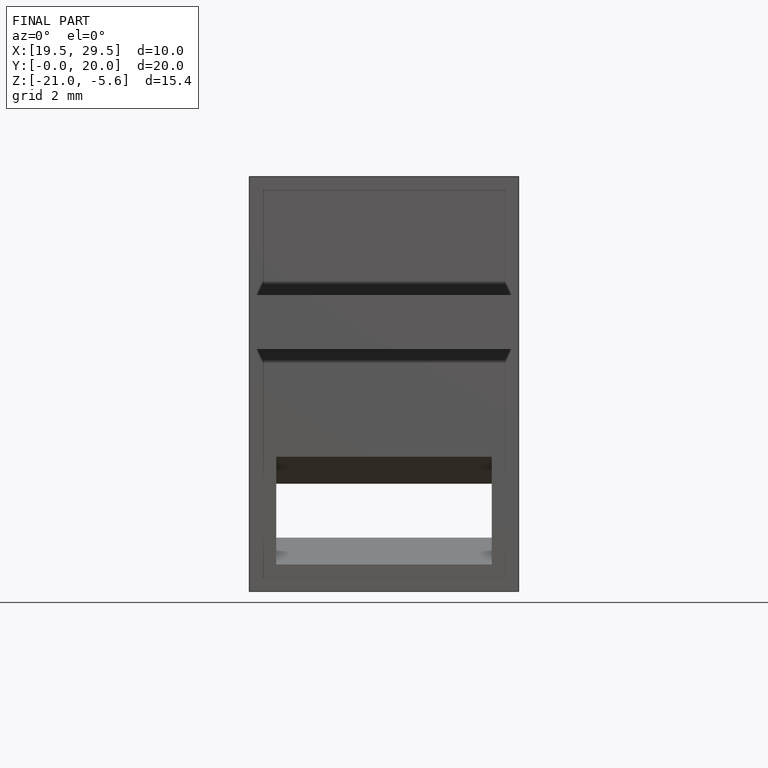
[diagram: finished part — front view with bounding-box wireframe]
